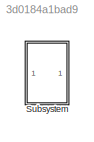
MODEL slx_3d0184a1bad9
KIND model
CONFIG AbsTol = auto
CONFIG EnableMultiTasking = off
CONFIG FixedStep = auto
CONFIG MaxStep = auto
CONFIG MinStep = auto
CONFIG RelTol = 1e-3
CONFIG SampleTimeConstraint = Unconstrained
CONFIG SolverName = VariableStepAuto
CONFIG StartTime = 0.0
CONFIG StopTime = 10.0
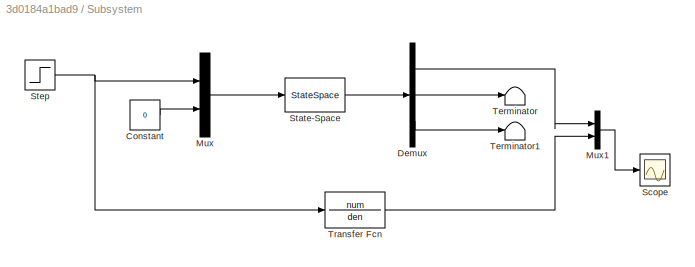
BLOCK [SubSystem] Subsystem
  Ports = []
  RequestExecContextInheritance = off
BLOCK [Constant] Subsystem/Constant
  Value = 0
BLOCK [Demux] Subsystem/Demux
  Outputs = 3
  Ports = [1, 3]
BLOCK [Mux] Subsystem/Mux
  DisplayOption = bar
  Inputs = 2
  Ports = [2, 1]
BLOCK [Mux] Subsystem/Mux1
  DisplayOption = bar
  Inputs = 2
  Ports = [2, 1]
BLOCK [Scope] Subsystem/Scope
  Floating = off
  NumInputPorts = 1
  Ports = [1]
  ScopeSpecificationString = Simulink.scopes.TimeScopeBlockCfg('CurrentConfiguration', extmgr.ConfigurationSet(extmgr.Configuration('Core','General UI',true),extmgr.Configuration('Core','Source UI',true),extmgr.Configuration('Sources','WiredSimulink',true),extmgr.Configuration('Visuals','Time Domain',true,'SerializedDisplays',{struct('MinYLimReal','-1.18903','MaxYLimReal','10.70123','YLabelReal','','MinYLimMag','0.00000','Max...<+1346ch>
BLOCK [StateSpace] Subsystem/State-Space
  A = A
  B = B
  C = C
  D = D
  InitialCondition = 0
  Ports = [1, 1]
BLOCK [Step] Subsystem/Step
  SampleTime = 0
BLOCK [Terminator] Subsystem/Terminator
BLOCK [Terminator] Subsystem/Terminator1
BLOCK [TransferFcn] Subsystem/Transfer Fcn
  Denominator = den
  Numerator = num
LINE Subsystem/Constant:1 -> Subsystem/Mux:2
LINE Subsystem/Demux:1 -> Subsystem/Mux1:1
LINE Subsystem/Demux:2 -> Subsystem/Terminator:1
LINE Subsystem/Demux:3 -> Subsystem/Terminator1:1
LINE Subsystem/Mux1:1 -> Subsystem/Scope:1
LINE Subsystem/Mux:1 -> Subsystem/State-Space:1
LINE Subsystem/State-Space:1 -> Subsystem/Demux:1
NET Subsystem/Step:1 -> Subsystem/Mux:1, Subsystem/Transfer Fcn:1
LINE Subsystem/Transfer Fcn:1 -> Subsystem/Mux1:2
note: NET lines group one-source signal fan-out (src -> all destinations, sorted); 1:1 wires keep LINE
